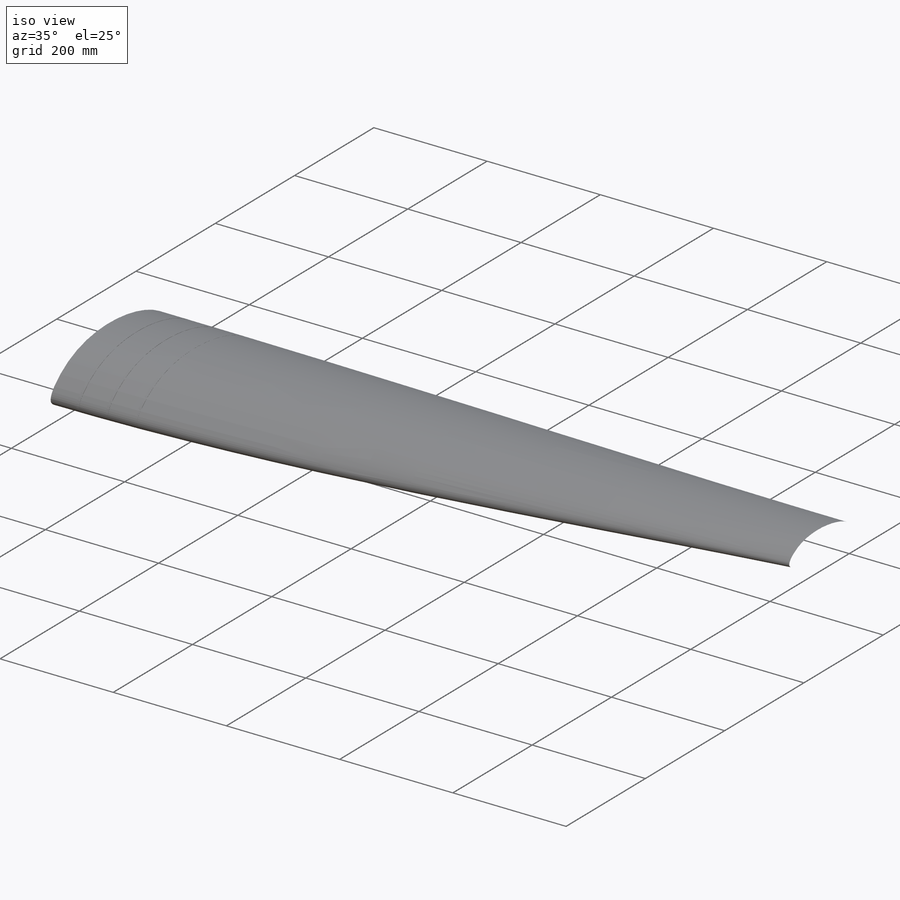
[diagram: iso view]
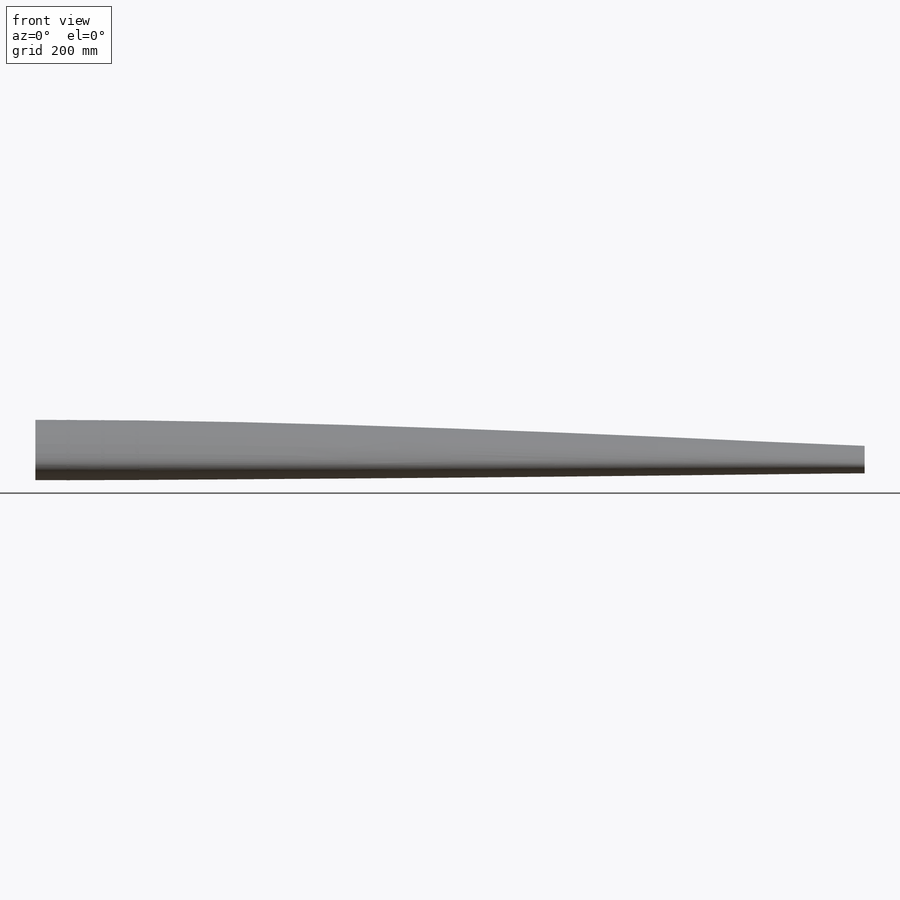
[diagram: front view]
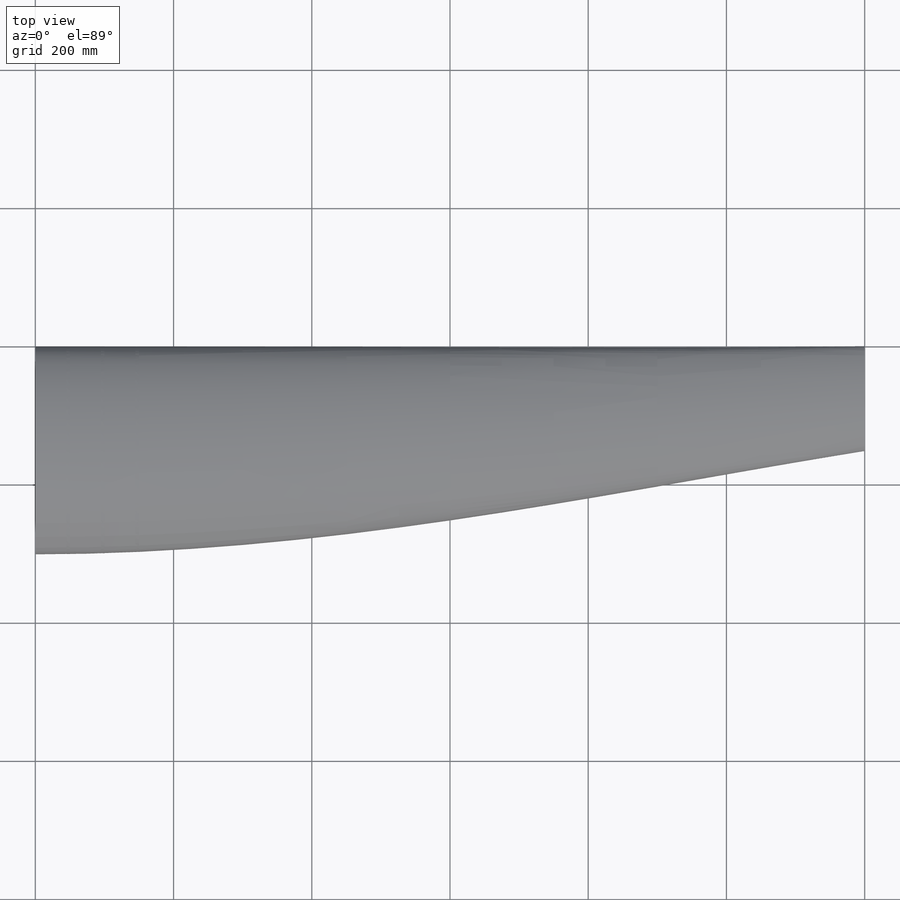
[diagram: top view]
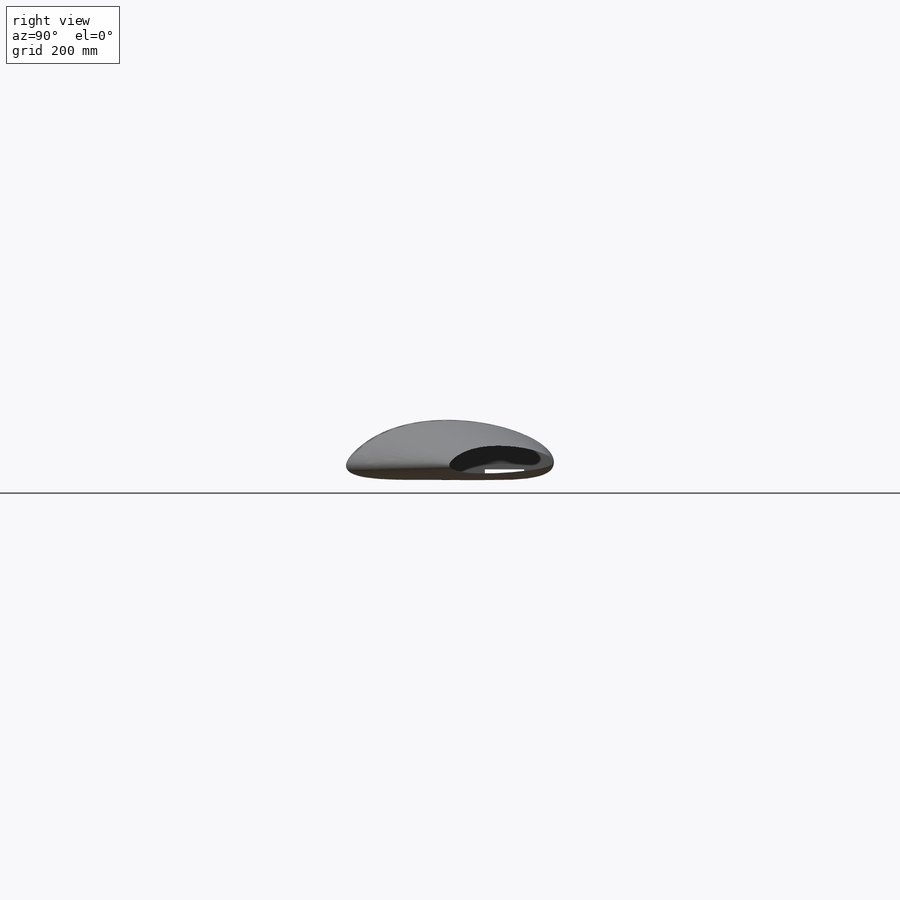
[diagram: right view]
SOLIDWORKS PART (.sldprt)
format: sldprt  version: not decoded by parser v0  size: 348,160 bytes
history: native  units: mm
features: plane x7, sketch x6, extrude x3, material x1, cut_extrude x1 (+9 scaffold rows collapsed)
feature tree (27):
  scaffold x9  (default folders/planes/origin — collapsed)
  material  "Material <nicht festgelegt>"
  plane  "Ebene vorne"
  plane  "Ebene oben"
  plane  "Ebene rechts"
  sketch  "Skizze1"  dims[D1=300.0mm D2=~104.96824mm]
  plane  "Ebene1200"  Offset=1200mm
  sketch  "Skizze2"  dims[D1=150.0mm]
  plane  "Ebene50-1"  Offset=50mm
  plane  "Ebene50-2"  Offset=100mm
  plane  "Ebene50-3"  Offset=150mm
  sketch  "Skizze3"
  extrude  "Aufsatz-Linear austragen1"  Depth=5mm
  sketch  "Skizze4"
  extrude  "Aufsatz-Linear austragen2"  Depth=5mm
  sketch  "Skizze5"
  extrude  "Aufsatz-Linear austragen3"  Depth=5mm
  sketch  "Skizze6"  dims[D1=~17.929913mm D2=~62.48303mm]
  cut_extrude  "Schnitt-Linear austragen2"  [1 undecoded]
decode coverage: 6 of 10 modeling features carry decoded parameters
note: ~ marks probable driven/reference dimensions
note: 1 parameter value undecoded
note: suppression state not decoded; provenance and decode notes live in map.json
